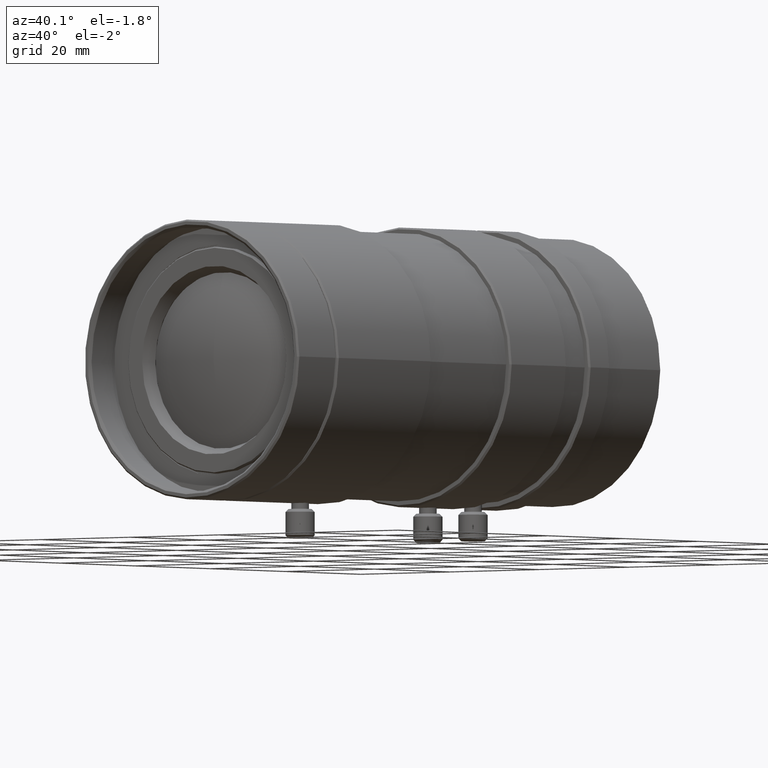
[diagram: clean part render]
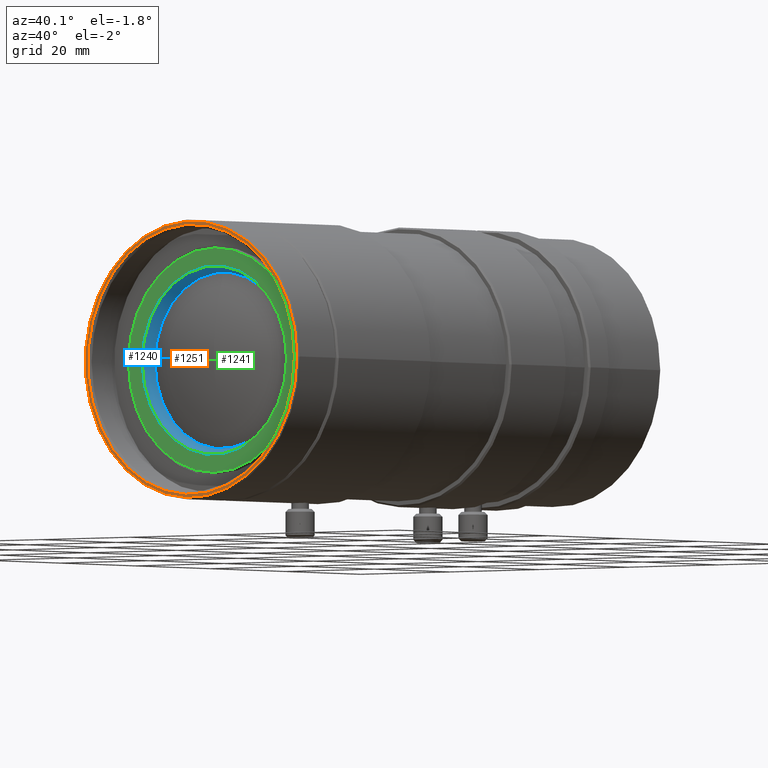
[diagram: same view with three faces highlighted in distinct colors, each labeled with its STEP entity id]
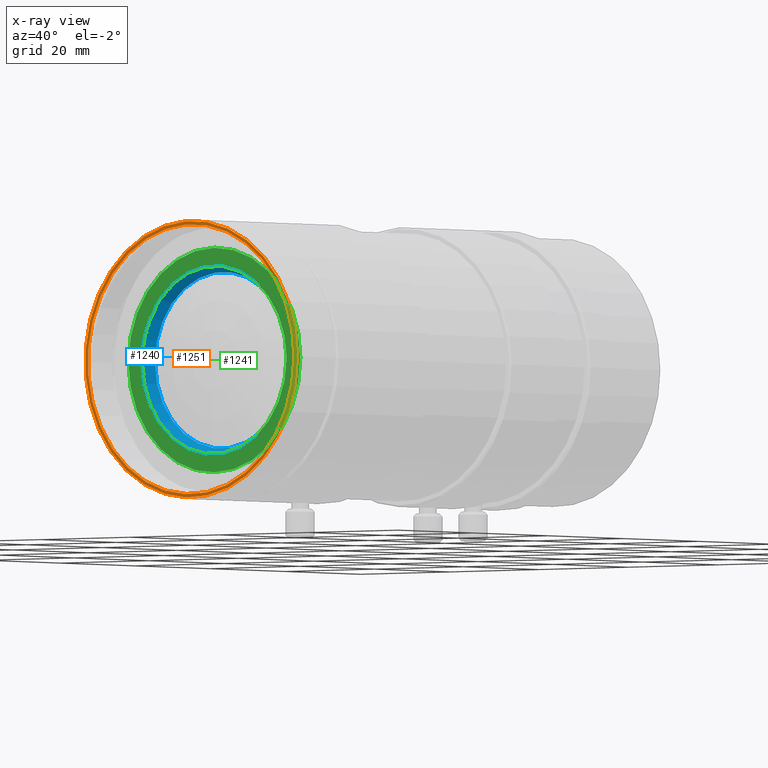
[diagram: x-ray of the same camera — body ghosted, the three highlighted faces saturated]
A machine part, auxiliary view with three faces highlighted in distinct colors.
The next image is the same camera in x-ray (body ghosted, the three faces saturated) — at least one of them is partly hidden behind the body in this view.
Their STEP definitions:

[orange] entity #1251 — the highlighted planar face has unit normal (0, 1, -0).
#34=PLANE('',#1356);
#125=ORIENTED_EDGE('',*,*,#238,.T.);
#126=ORIENTED_EDGE('',*,*,#237,.F.);
#237=EDGE_CURVE('',#307,#307,#374,.T.);
#238=EDGE_CURVE('',#308,#308,#375,.T.);
#307=VERTEX_POINT('',#1837);
#308=VERTEX_POINT('',#1840);
#374=CIRCLE('',#1355,23.15);
#375=CIRCLE('',#1357,23.6999999780385);
#472=EDGE_LOOP('',(#125));
#473=EDGE_LOOP('',(#126));
#612=FACE_BOUND('',#472,.T.);
#613=FACE_BOUND('',#473,.T.);
#1251=ADVANCED_FACE('',(#612,#613),#34,.F.);
#1355=AXIS2_PLACEMENT_3D('',#1836,#1554,#1555);
#1356=AXIS2_PLACEMENT_3D('',#1838,#1556,#1557);
#1357=AXIS2_PLACEMENT_3D('',#1839,#1558,#1559);
#1554=DIRECTION('',(-6.12303176911189E-17,-1.,1.69202101686471E-17));
#1555=DIRECTION('',(1.,-6.12303176911189E-17,0.));
#1556=DIRECTION('',(6.12303176911189E-17,1.,-1.69202101686471E-17));
#1557=DIRECTION('',(-1.,6.12303176911189E-17,0.));
#1558=DIRECTION('',(-6.12303176911189E-17,-1.,1.69202101686471E-17));
#1559=DIRECTION('',(1.,-6.12303176911189E-17,0.));
#1836=CARTESIAN_POINT('',(-2.39840908892195E-32,-3.9170286540418E-16,6.62769480630002E-33));
#1837=CARTESIAN_POINT('',(23.15,-1.80918471995358E-15,6.62769480630002E-33));
#1838=CARTESIAN_POINT('',(-2.84908195730953E-34,-4.653057610581E-18,23.15));
#1839=CARTESIAN_POINT('',(-2.45539072806814E-32,-4.01008980625342E-16,6.78515623169573E-33));
#1840=CARTESIAN_POINT('',(23.6999999780385,-1.85216750856015E-15,6.78515623169573E-33));

[blue] entity #1240 — the highlighted conical surface has half-angle 25 deg.
#103=ORIENTED_EDGE('',*,*,#227,.T.);
#104=ORIENTED_EDGE('',*,*,#226,.F.);
#226=EDGE_CURVE('',#296,#296,#363,.T.);
#227=EDGE_CURVE('',#297,#297,#364,.T.);
#296=VERTEX_POINT('',#1804);
#297=VERTEX_POINT('',#1807);
#363=CIRCLE('',#1333,15.15);
#364=CIRCLE('',#1335,16.175876847941);
#450=EDGE_LOOP('',(#103));
#451=EDGE_LOOP('',(#104));
#590=FACE_BOUND('',#450,.T.);
#591=FACE_BOUND('',#451,.T.);
#700=CONICAL_SURFACE('',#1334,16.175876847941,0.436332312998584);
#1240=ADVANCED_FACE('',(#590,#591),#700,.F.);
#1333=AXIS2_PLACEMENT_3D('',#1803,#1510,#1511);
#1334=AXIS2_PLACEMENT_3D('',#1805,#1512,#1513);
#1335=AXIS2_PLACEMENT_3D('',#1806,#1514,#1515);
#1510=DIRECTION('',(-6.12303176911189E-17,-1.,1.69202101686471E-17));
#1511=DIRECTION('',(1.,-6.12303176911189E-17,0.));
#1512=DIRECTION('',(-6.12303176911189E-17,-1.,1.69202101686471E-17));
#1513=DIRECTION('',(1.,-6.12303176911189E-17,0.));
#1514=DIRECTION('',(-6.12303176911189E-17,-1.,1.69202101686471E-17));
#1515=DIRECTION('',(1.,-6.12303176911189E-17,0.));
#1803=CARTESIAN_POINT('',(5.13593573916771E-16,8.38789660552856,-1.41924973438425E-16));
#1804=CARTESIAN_POINT('',(15.15,8.38789660552856,-1.41924973438425E-16));
#1805=CARTESIAN_POINT('',(3.7888687499631E-16,6.18789660552856,-1.04700511067401E-16));
#1806=CARTESIAN_POINT('',(3.7888687499631E-16,6.18789660552856,-1.04700511067401E-16));
#1807=CARTESIAN_POINT('',(16.175876847941,6.18789660552856,-1.04700511067401E-16));

[green] entity #1241 — the highlighted planar face has unit normal (0, 1, -0).
#31=PLANE('',#1336);
#105=ORIENTED_EDGE('',*,*,#228,.T.);
#106=ORIENTED_EDGE('',*,*,#227,.F.);
#227=EDGE_CURVE('',#297,#297,#364,.T.);
#228=EDGE_CURVE('',#298,#298,#365,.T.);
#297=VERTEX_POINT('',#1807);
#298=VERTEX_POINT('',#1810);
#364=CIRCLE('',#1335,16.175876847941);
#365=CIRCLE('',#1337,19.25);
#452=EDGE_LOOP('',(#105));
#453=EDGE_LOOP('',(#106));
#592=FACE_BOUND('',#452,.T.);
#593=FACE_BOUND('',#453,.T.);
#1241=ADVANCED_FACE('',(#592,#593),#31,.F.);
#1335=AXIS2_PLACEMENT_3D('',#1806,#1514,#1515);
#1336=AXIS2_PLACEMENT_3D('',#1808,#1516,#1517);
#1337=AXIS2_PLACEMENT_3D('',#1809,#1518,#1519);
#1514=DIRECTION('',(-6.12303176911189E-17,-1.,1.69202101686471E-17));
#1515=DIRECTION('',(1.,-6.12303176911189E-17,0.));
#1516=DIRECTION('',(6.12303176911189E-17,1.,-1.69202101686471E-17));
#1517=DIRECTION('',(-1.,6.12303176911189E-17,0.));
#1518=DIRECTION('',(-6.12303176911189E-17,-1.,1.69202101686471E-17));
#1519=DIRECTION('',(1.,-6.12303176911189E-17,0.));
#1806=CARTESIAN_POINT('',(3.7888687499631E-16,6.18789660552856,-1.04700511067401E-16));
#1807=CARTESIAN_POINT('',(16.175876847941,6.18789660552856,-1.04700511067401E-16));
#1808=CARTESIAN_POINT('',(3.7888687499631E-16,6.18789660552856,16.175876847941));
#1809=CARTESIAN_POINT('',(3.7888687499631E-16,6.18789660552856,-1.04700511067401E-16));
#1810=CARTESIAN_POINT('',(19.25,6.18789660552856,-1.04700511067401E-16));